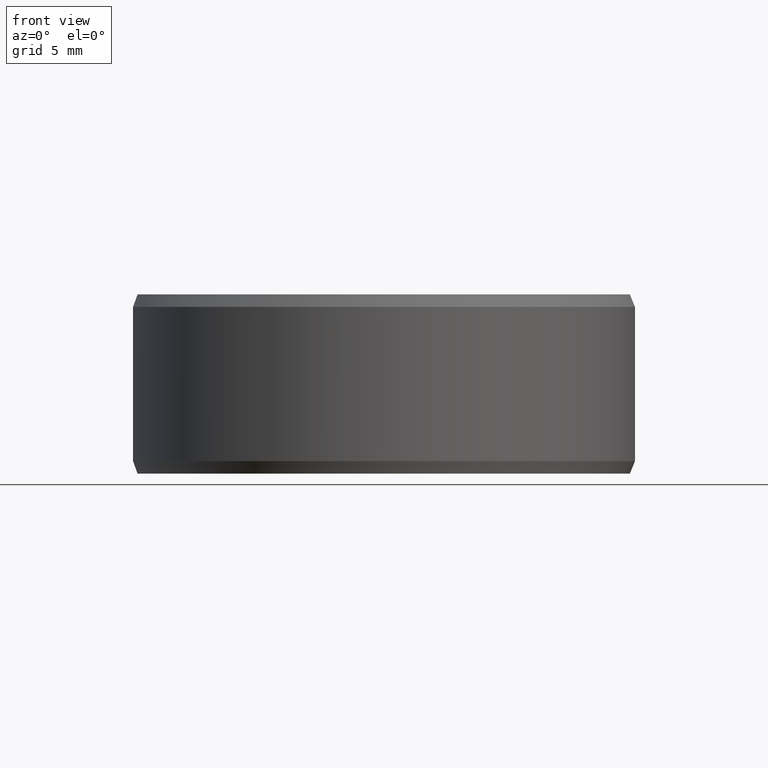
[diagram: clean part render]
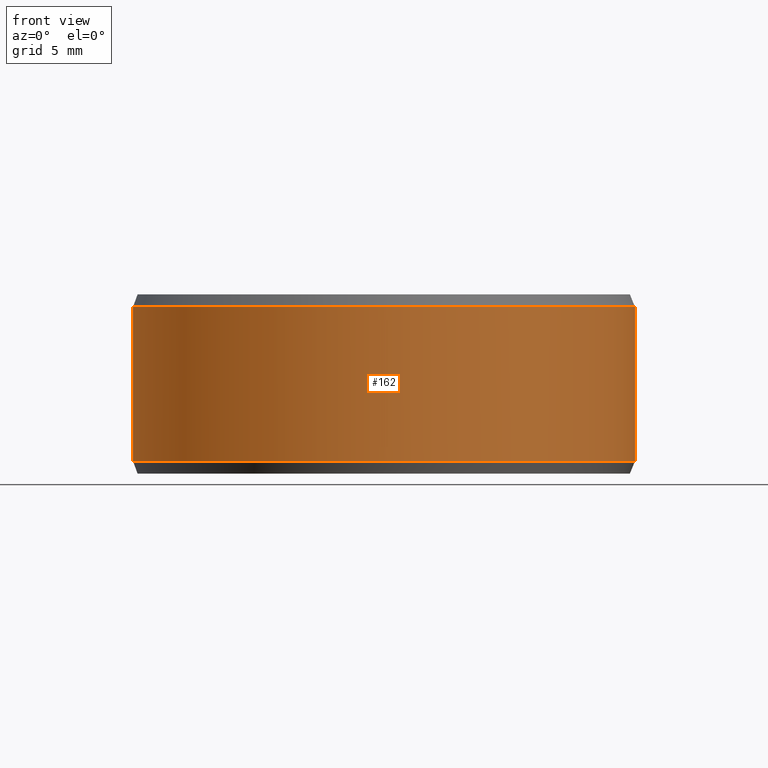
[diagram: same view with one face highlighted and labeled with its STEP entity id]
A machine part, front view. The second image highlights one B-rep face of the part: STEP entity #162.
In plain terms, the highlighted cylindrical surface (partial cylindrical patch) has radius 14 mm, axis along (-0, 0, -1).
Its self-contained STEP definition (entity closure, byte-faithful):
#162=ADVANCED_FACE('',(#185,#186),#187,.T.);
#185=FACE_OUTER_BOUND('',#211,.T.);
#186=FACE_BOUND('',#212,.T.);
#187=CYLINDRICAL_SURFACE('',#213,0.014);
#211=EDGE_LOOP('',(#289,#290,#291,#292));
#212=EDGE_LOOP('',(#293));
#213=AXIS2_PLACEMENT_3D('',#294,#295,#296);
#289=ORIENTED_EDGE('',*,*,#314,.T.);
#290=ORIENTED_EDGE('',*,*,#323,.F.);
#291=ORIENTED_EDGE('',*,*,#309,.F.);
#292=ORIENTED_EDGE('',*,*,#324,.T.);
#293=ORIENTED_EDGE('',*,*,#327,.T.);
#294=CARTESIAN_POINT('',(-6.93889390390723E-018,-6.93889390390723E-018,0.0));
#295=DIRECTION('',(6.12323399573677E-017,0.0,-1.0));
#296=DIRECTION('',(-1.0,0.0,-6.12323399573677E-017));
#309=EDGE_CURVE('',#341,#342,#343,.T.);
#314=EDGE_CURVE('',#351,#349,#352,.T.);
#323=EDGE_CURVE('',#342,#349,#365,.T.);
#324=EDGE_CURVE('',#341,#351,#366,.T.);
#327=EDGE_CURVE('',#370,#370,#371,.T.);
#341=VERTEX_POINT('',#389);
#342=VERTEX_POINT('',#390);
#343=CIRCLE('',#391,0.014);
#349=VERTEX_POINT('',#399);
#351=VERTEX_POINT('',#402);
#352=CIRCLE('',#403,0.014);
#365=LINE('',#422,#423);
#366=LINE('',#424,#425);
#370=VERTEX_POINT('',#493);
#371=B_SPLINE_CURVE_WITH_KNOTS('',3,(#494,#495,#496,#497,#498,#499,#500,#501,#502,#503,#504,#505,#506,#507,#508,#509,#510,#511,#512,#513,#514,#515,#516,#517,#518,#519,#520,#521,#522,#523,#524,#525,#526,#527,#528,#529,#530,#531,#532,#533,#534,#535,#536,#537,#538,#539,#540,#541,#542,#543,#544,#545,#546,#547,#548,#549,#550,#551,#552,#553),.UNSPECIFIED.,.T.,.F.,(2,2,2,2,2,2,2,2,2,2,2,2,2,2,2,2,2,2,2,2,2,2,2,2,2,2,2,2,2,2,2,2),(-0.000587838766358768,0.0,0.000587838766358772,0.00117567753271754,0.00176351629907632,0.00235135506543509,0.00293919383179386,0.00352703259815263,0.0041148713645114,0.00470271013087017,0.00529054889722894,0.00587838766358771,0.00646622642994648,0.00705406519630526,0.00764190396266403,0.0082297427290228,0.00881758149538157,0.00940542026174034,0.0105810977944579,0.0111689365608166,0.0117567753271754,0.0123446140935342,0.012932452859893,0.0141081303926105,0.0146959691589693,0.015283807925328,0.0158716466916868,0.0164594854580456,0.0176351629907631,0.0182230017571219,0.0188108405234806,0.0193986792898394),.UNSPECIFIED.);
#389=CARTESIAN_POINT('',(0.000244333690121964,0.0139978677321895,0.0007));
#390=CARTESIAN_POINT('',(-6.93889390390723E-018,0.014,0.0007));
#391=AXIS2_PLACEMENT_3D('',#567,#568,#569);
#399=CARTESIAN_POINT('',(-6.93889390390723E-018,0.014,0.0093));
#402=CARTESIAN_POINT('',(0.000244333690121964,0.0139978677321895,0.0093));
#403=AXIS2_PLACEMENT_3D('',#576,#577,#578);
#422=CARTESIAN_POINT('',(-6.93889390390723E-018,0.014,0.0007));
#423=VECTOR('',#591,1.0);
#424=CARTESIAN_POINT('',(0.000244333690121964,0.0139978677321895,0.0007));
#425=VECTOR('',#592,1.0);
#493=CARTESIAN_POINT('',(0.0101764723198152,-0.0096145416491913,0.005));
#494=CARTESIAN_POINT('',(0.0101764723198152,-0.00961454164919131,0.00480118593650006));
#495=CARTESIAN_POINT('',(0.0101764723198152,-0.0096145416491913,0.00519881406349995));
#496=CARTESIAN_POINT('',(0.0101902650341411,-0.00960000163605004,0.00539418688489421));
#497=CARTESIAN_POINT('',(0.0102437993880451,-0.00954285633213079,0.00577836917164953));
#498=CARTESIAN_POINT('',(0.010284210463045,-0.00949952259149727,0.00596920751586939));
#499=CARTESIAN_POINT('',(0.0103879519367457,-0.00938596659244176,0.00633220712449726));
#500=CARTESIAN_POINT('',(0.010450847191623,-0.00931622383579142,0.00650428148203671));
#501=CARTESIAN_POINT('',(0.0105967371648665,-0.00914993961947067,0.00682993824528099));
#502=CARTESIAN_POINT('',(0.0106802176616042,-0.00905275787846214,0.00698366403376302));
#503=CARTESIAN_POINT('',(0.0108585521730745,-0.00883806082859362,0.00725947905398487));
#504=CARTESIAN_POINT('',(0.0109541407065516,-0.00871974999828461,0.00738345933849129));
#505=CARTESIAN_POINT('',(0.0111566563984231,-0.008459093134553,0.00760280456368137));
#506=CARTESIAN_POINT('',(0.0112614479554259,-0.0083194076585863,0.00769563553448423));
#507=CARTESIAN_POINT('',(0.0114727414244555,-0.00802551917635824,0.00784545868965163));
#508=CARTESIAN_POINT('',(0.011580769463396,-0.00786914137350822,0.00790338534985765));
#509=CARTESIAN_POINT('',(0.0117942889183208,-0.00754535328740534,0.00798068615992065));
#510=CARTESIAN_POINT('',(0.0118982967452887,-0.00738031594652709,0.0079998815666925));
#511=CARTESIAN_POINT('',(0.0121005314572932,-0.00704383896469589,0.00800011735111467));
#512=CARTESIAN_POINT('',(0.0121996173481958,-0.00687069848726048,0.00798050162027062));
#513=CARTESIAN_POINT('',(0.0123841677614814,-0.00653219335298094,0.00790370768294098));
#514=CARTESIAN_POINT('',(0.0124704869486117,-0.0063655552391746,0.00784689531020924));
#515=CARTESIAN_POINT('',(0.0126322559424786,-0.00603816595020306,0.00769609040483113));
#516=CARTESIAN_POINT('',(0.0127068146666752,-0.00587907690022151,0.00760242459442115));
#517=CARTESIAN_POINT('',(0.0128405314551688,-0.00558098881209875,0.00738556366315309));
#518=CARTESIAN_POINT('',(0.0129007761920341,-0.00543965417907653,0.00726090263130118));
#519=CARTESIAN_POINT('',(0.0130076736262932,-0.0051788310241535,0.00698235883305251));
#520=CARTESIAN_POINT('',(0.0130533132641714,-0.00506193574406981,0.00683153031859164));
#521=CARTESIAN_POINT('',(0.0131314953360373,-0.00485551345269624,0.00650720899227364));
#522=CARTESIAN_POINT('',(0.0131642650688123,-0.00476529287753478,0.0063315684142279));
#523=CARTESIAN_POINT('',(0.01321572220727,-0.00462066851774794,0.00596915844940656));
#524=CARTESIAN_POINT('',(0.0132346931598278,-0.00456557320570977,0.00578217212781125));
#525=CARTESIAN_POINT('',(0.0132602571532514,-0.00449078411428718,0.00539646905386752));
#526=CARTESIAN_POINT('',(0.0132666741915814,-0.00447161669883591,0.00519733007108118));
#527=CARTESIAN_POINT('',(0.0132667536733888,-0.00447138088258504,0.00460905860191172));
#528=CARTESIAN_POINT('',(0.0132414830621486,-0.00454823423733293,0.00421317710663832));
#529=CARTESIAN_POINT('',(0.0131647320544529,-0.00476399590944044,0.0036712731941084));
#530=CARTESIAN_POINT('',(0.0131321790553477,-0.004853675040902,0.00349597878418205));
#531=CARTESIAN_POINT('',(0.0130536746126995,-0.00506101444871998,0.00316962178692077));
#532=CARTESIAN_POINT('',(0.013008046116108,-0.00517786384280027,0.00301894732410814));
#533=CARTESIAN_POINT('',(0.0129020706836692,-0.00543655311819682,0.00274214011696052));
#534=CARTESIAN_POINT('',(0.0128412087517205,-0.00557943223744085,0.00261571472160185));
#535=CARTESIAN_POINT('',(0.0127074712537408,-0.0058776594519254,0.00239846208908278));
#536=CARTESIAN_POINT('',(0.0126341313028926,-0.00603424542581476,0.00230602854088815));
#537=CARTESIAN_POINT('',(0.0123914309908542,-0.00652579531932199,0.0020786780945265));
#538=CARTESIAN_POINT('',(0.0122052961637008,-0.00686932445999531,0.00200025940736324));
#539=CARTESIAN_POINT('',(0.0118993792687237,-0.00737861716476427,0.00199987125671881));
#540=CARTESIAN_POINT('',(0.0117952888573102,-0.00754375459057771,0.00201916161589447));
#541=CARTESIAN_POINT('',(0.0115833680123802,-0.00786528181567674,0.00209546763964119));
#542=CARTESIAN_POINT('',(0.0114744341740383,-0.00802311685039887,0.00215348837150277));
#543=CARTESIAN_POINT('',(0.0112622532479297,-0.00831833489281303,0.00230364782707708));
#544=CARTESIAN_POINT('',(0.0111583343766565,-0.00845687041319744,0.00239565131456545));
#545=CARTESIAN_POINT('',(0.0109564576745339,-0.00871682961133435,0.00261376320464764));
#546=CARTESIAN_POINT('',(0.0108593029673298,-0.00883713781568895,0.00273950081884853));
#547=CARTESIAN_POINT('',(0.0105918897025791,-0.00915913398566437,0.00315266512465703));
#548=CARTESIAN_POINT('',(0.0104400819199028,-0.00932888908293525,0.00348619438676966));
#549=CARTESIAN_POINT('',(0.0102850588516749,-0.00949860173507564,0.00402742350280974));
#550=CARTESIAN_POINT('',(0.0102444141804405,-0.00954219818898075,0.00421797554365252));
#551=CARTESIAN_POINT('',(0.0101902687928687,-0.00959999948475433,0.00460503805998482));
#552=CARTESIAN_POINT('',(0.0101764723198152,-0.00961454164919131,0.00480118593650006));
#553=CARTESIAN_POINT('',(0.0101764723198152,-0.0096145416491913,0.00519881406349995));
#567=CARTESIAN_POINT('',(-6.93889390390723E-018,-6.93889390390723E-018,0.0007));
#568=DIRECTION('',(6.12323399573677E-017,0.0,-1.0));
#569=DIRECTION('',(-1.0,0.0,-6.12323399573677E-017));
#576=CARTESIAN_POINT('',(-6.93889390390723E-018,-6.93889390390723E-018,0.0093));
#577=DIRECTION('',(6.12323399573677E-017,0.0,-1.0));
#578=DIRECTION('',(-1.0,0.0,-6.12323399573677E-017));
#591=DIRECTION('',(0.0,0.0,1.0));
#592=DIRECTION('',(-9.3259819610035E-021,-1.0686516840419E-018,1.0));